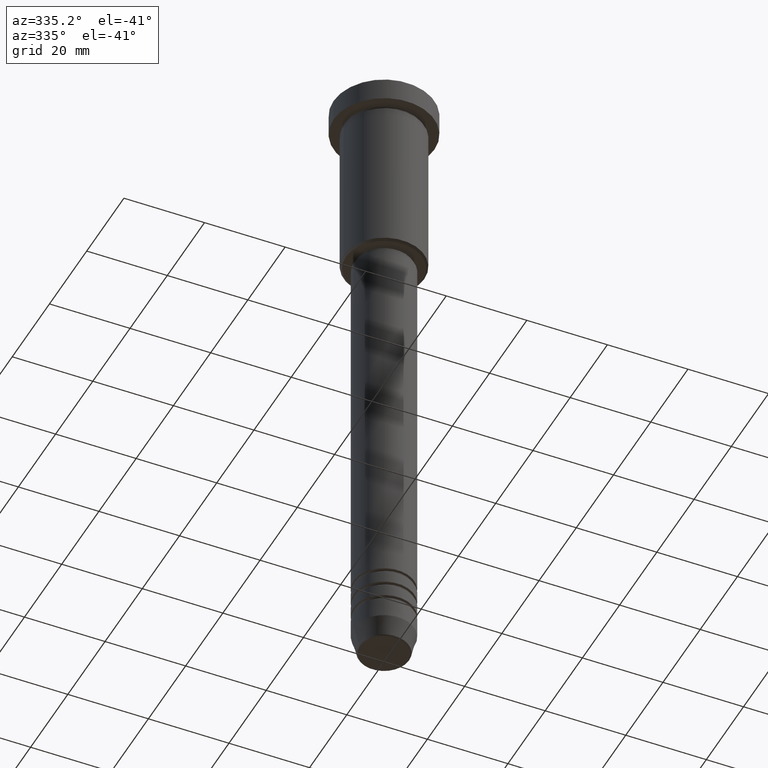
[diagram: clean part render]
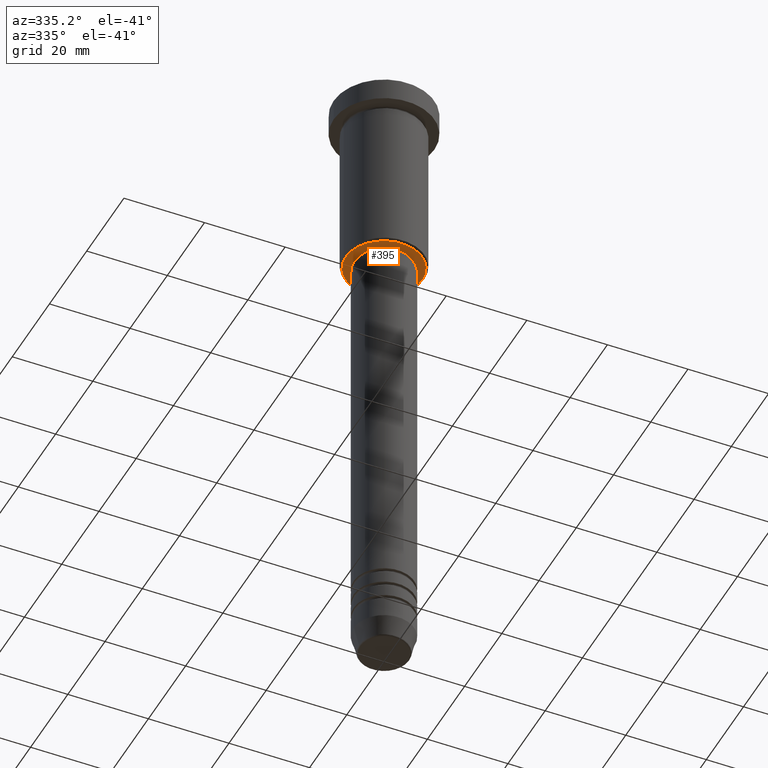
[diagram: same view with one face highlighted and labeled with its STEP entity id]
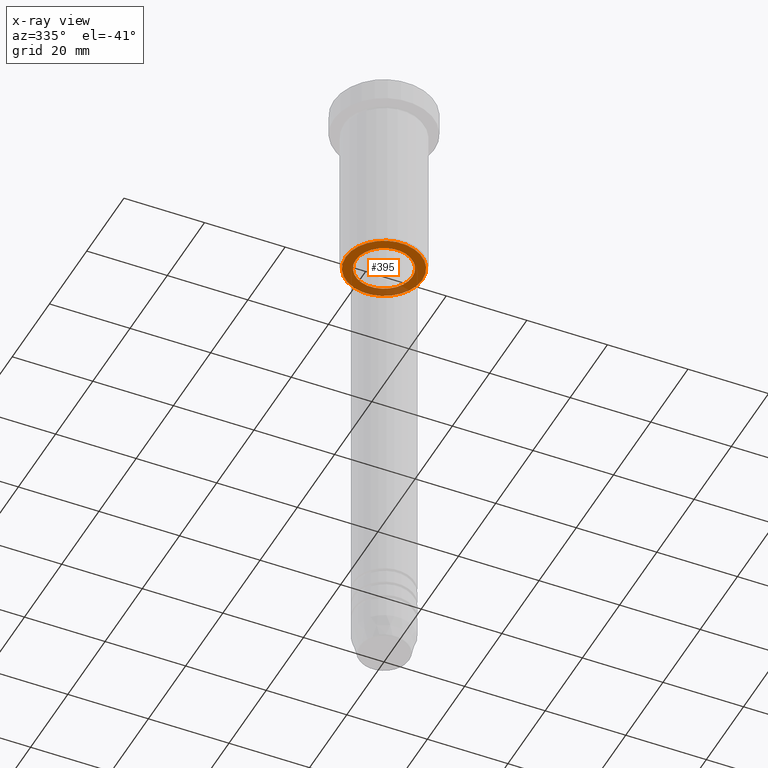
[diagram: x-ray of the same camera — body ghosted, the highlighted face saturated]
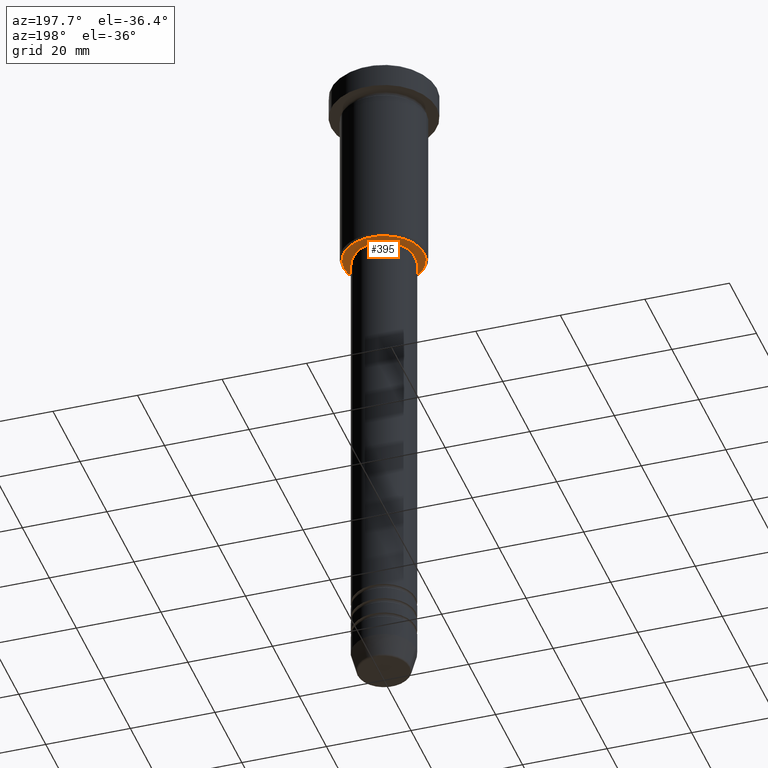
[diagram: same view with one face highlighted and labeled with its STEP entity id]
A machine part, auxiliary view. The second image highlights one B-rep face of the part: STEP entity #395.
The next image is the same camera in x-ray: the body ghosted, the highlighted face saturated — about 19% of this face is hidden behind the body in this view.
A second angle (auxiliary view) of the same face is appended — the face is thin or edge-on in the first view.
In plain terms, the highlighted planar face has unit normal (0, 0, -1).
Its self-contained STEP definition (entity closure, byte-faithful):
#12 = AXIS2_PLACEMENT_3D ( 'NONE', #1135, #1044, #320 ) ;
#95 = DIRECTION ( 'NONE',  ( 0.000000000000000000, 0.000000000000000000, -1.000000000000000000 ) ) ;
#144 = CIRCLE ( 'NONE', #588, 9.499999999999966249 ) ;
#175 = DIRECTION ( 'NONE',  ( -1.000000000000000000, 0.000000000000000000, 0.000000000000000000 ) ) ;
#198 = VERTEX_POINT ( 'NONE', #961 ) ;
#210 = CIRCLE ( 'NONE', #12, 6.999999999999999112 ) ;
#221 = EDGE_LOOP ( 'NONE', ( #290, #629 ) ) ;
#228 = EDGE_LOOP ( 'NONE', ( #633, #917 ) ) ;
#285 = AXIS2_PLACEMENT_3D ( 'NONE', #650, #755, #563 ) ;
#290 = ORIENTED_EDGE ( 'NONE', *, *, #483, .T. ) ;
#312 = CARTESIAN_POINT ( 'NONE',  ( 6.999999999999999112, 0.000000000000000000, -46.00000000000000711 ) ) ;
#320 = DIRECTION ( 'NONE',  ( 1.000000000000000000, 0.000000000000000000, 0.000000000000000000 ) ) ;
#352 = VERTEX_POINT ( 'NONE', #728 ) ;
#353 = EDGE_CURVE ( 'NONE', #198, #1178, #532, .T. ) ;
#360 = DIRECTION ( 'NONE',  ( 0.000000000000000000, 0.000000000000000000, -1.000000000000000000 ) ) ;
#362 = CARTESIAN_POINT ( 'NONE',  ( 9.499999999999966249, 0.000000000000000000, -46.00000000000001421 ) ) ;
#384 = AXIS2_PLACEMENT_3D ( 'NONE', #585, #927, #654 ) ;
#387 = FACE_OUTER_BOUND ( 'NONE', #228, .T. ) ;
#395 = ADVANCED_FACE ( 'NONE', ( #387, #923 ), #830, .T. ) ;
#474 = VERTEX_POINT ( 'NONE', #312 ) ;
#483 = EDGE_CURVE ( 'NONE', #474, #352, #820, .T. ) ;
#532 = CIRCLE ( 'NONE', #621, 9.499999999999966249 ) ;
#563 = DIRECTION ( 'NONE',  ( -1.000000000000000000, 0.000000000000000000, -0.000000000000000000 ) ) ;
#585 = CARTESIAN_POINT ( 'NONE',  ( 0.000000000000000000, 0.000000000000000000, -46.00000000000000711 ) ) ;
#588 = AXIS2_PLACEMENT_3D ( 'NONE', #707, #95, #1068 ) ;
#621 = AXIS2_PLACEMENT_3D ( 'NONE', #1077, #360, #175 ) ;
#629 = ORIENTED_EDGE ( 'NONE', *, *, #1136, .T. ) ;
#633 = ORIENTED_EDGE ( 'NONE', *, *, #719, .T. ) ;
#650 = CARTESIAN_POINT ( 'NONE',  ( 0.000000000000000000, 10.00000000000000000, -46.00000000000001421 ) ) ;
#654 = DIRECTION ( 'NONE',  ( 1.000000000000000000, 0.000000000000000000, 0.000000000000000000 ) ) ;
#707 = CARTESIAN_POINT ( 'NONE',  ( 0.000000000000000000, 0.000000000000000000, -46.00000000000001421 ) ) ;
#719 = EDGE_CURVE ( 'NONE', #1178, #198, #144, .T. ) ;
#728 = CARTESIAN_POINT ( 'NONE',  ( -6.999999999999999112, 8.572527594031472204E-16, -46.00000000000000711 ) ) ;
#755 = DIRECTION ( 'NONE',  ( 0.000000000000000000, 0.000000000000000000, -1.000000000000000000 ) ) ;
#820 = CIRCLE ( 'NONE', #384, 6.999999999999999112 ) ;
#830 = PLANE ( 'NONE',  #285 ) ;
#917 = ORIENTED_EDGE ( 'NONE', *, *, #353, .T. ) ;
#923 = FACE_BOUND ( 'NONE', #221, .T. ) ;
#927 = DIRECTION ( 'NONE',  ( -0.000000000000000000, -0.000000000000000000, 1.000000000000000000 ) ) ;
#961 = CARTESIAN_POINT ( 'NONE',  ( -9.499999999999966249, 1.194030629168667300E-15, -46.00000000000001421 ) ) ;
#1044 = DIRECTION ( 'NONE',  ( -0.000000000000000000, -0.000000000000000000, 1.000000000000000000 ) ) ;
#1068 = DIRECTION ( 'NONE',  ( -1.000000000000000000, 0.000000000000000000, 0.000000000000000000 ) ) ;
#1077 = CARTESIAN_POINT ( 'NONE',  ( 0.000000000000000000, 0.000000000000000000, -46.00000000000001421 ) ) ;
#1135 = CARTESIAN_POINT ( 'NONE',  ( 0.000000000000000000, 0.000000000000000000, -46.00000000000000711 ) ) ;
#1136 = EDGE_CURVE ( 'NONE', #352, #474, #210, .T. ) ;
#1178 = VERTEX_POINT ( 'NONE', #362 ) ;